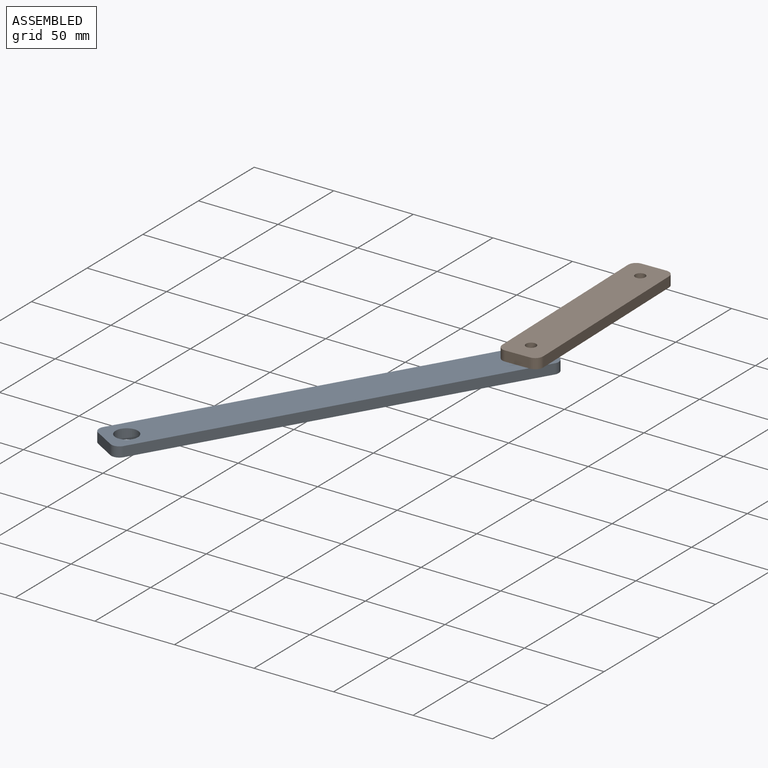
[diagram: assembled view]
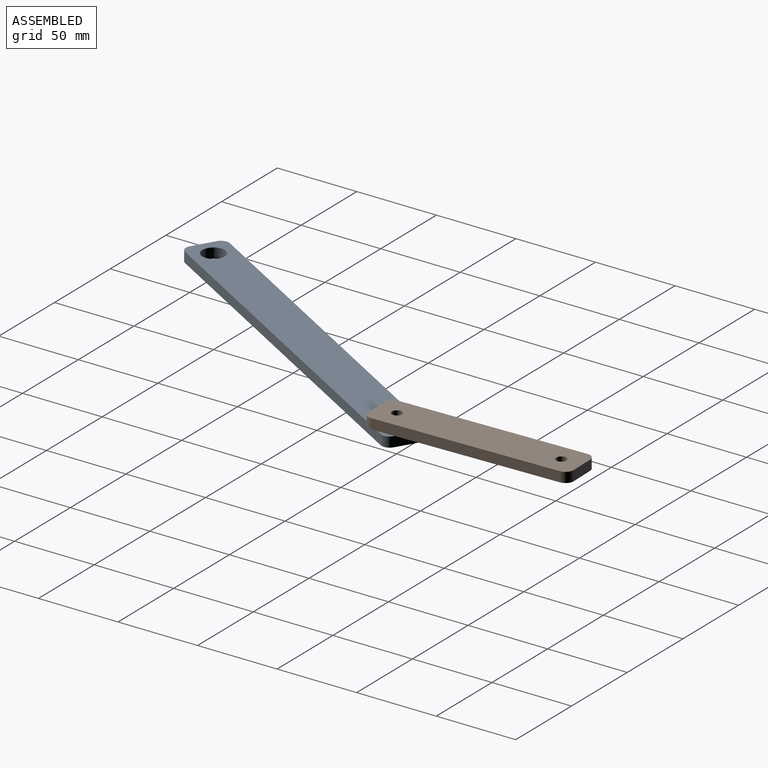
[diagram: assembled view, second angle]
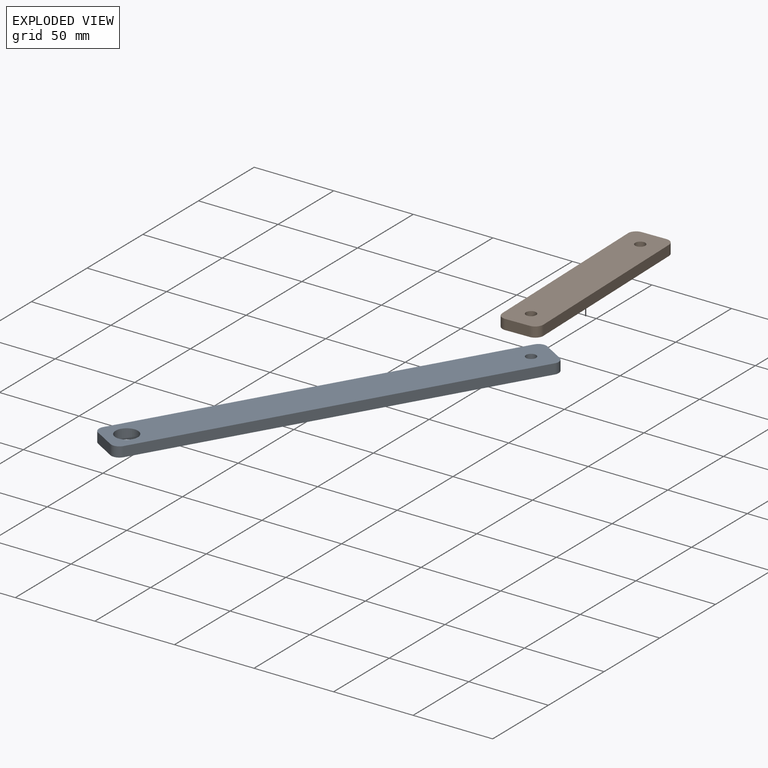
[diagram: exploded view]
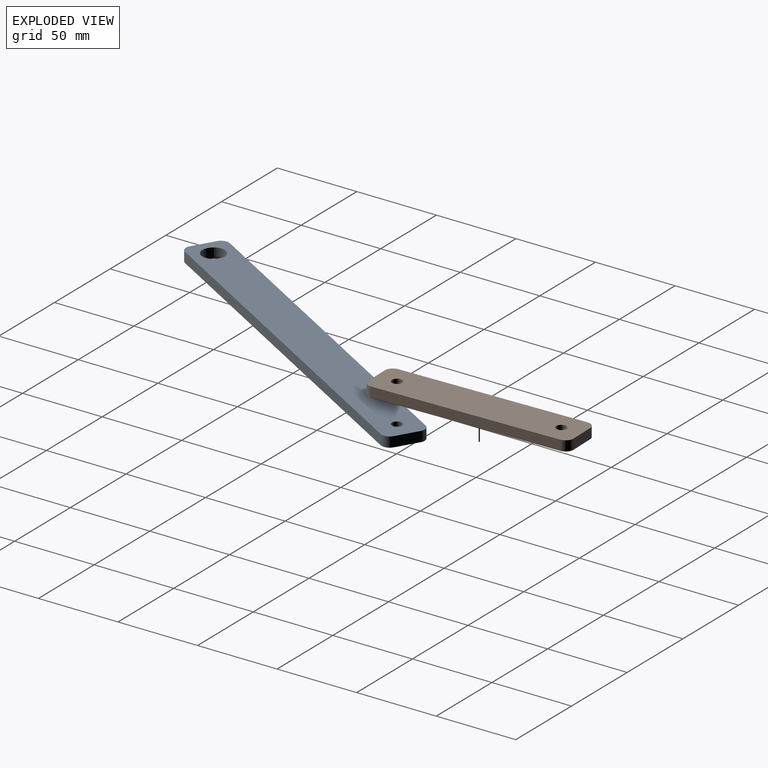
[diagram: exploded view, second angle]
ASSEMBLY  parts=2 mates=2
PART A: 12 faces, bbox 254x25.4x6.4 mm
  f0: plane 15.24x6.35mm, normal (-1,0,0), area 96.8mm2, adj f1,f3,f9,f11
  f1: plane 254x25.4mm, normal (0,0,-1), area 6244.5mm2, adj f0,f2,f4,f5,f6,f7,f8,f9
  f2: plane 15.24x6.35mm, normal (1,0,0), area 96.8mm2, adj f1,f3,f8,f10
  f3: plane 254x25.4mm, normal (0,0,1), area 6244.5mm2, adj f0,f2,f4,f5,f6,f7,f8,f9
  f4: plane 243.84x6.35mm, normal (0,1,0), area 1548.4mm2, adj f1,f3,f10,f11
  f5: plane 243.84x6.35mm, normal (0,-1,0), area 1548.4mm2, adj f1,f3,f8,f9
  f6: cylinder r=3.17mm len=6.35mm, axis (0,0,1), area 126.7mm2, adj f1,f3
  f7: cylinder r=6.99mm len=13.97mm, axis (0,0,1), area 278.7mm2, adj f1,f3
  f8: cylinder r=5.08mm len=6.35mm, axis (0,0,1), area 50.7mm2, adj f1,f2,f3,f5
  f9: cylinder r=5.08mm len=6.35mm, axis (0,0,-1), area 50.7mm2, adj f0,f1,f3,f5
  f10: cylinder r=5.08mm len=6.35mm, axis (0,0,-1), area 50.7mm2, adj f1,f2,f3,f4
  f11: cylinder r=5.08mm len=6.35mm, axis (0,0,1), area 50.7mm2, adj f0,f1,f3,f4
PART B: 12 faces, bbox 127x25.4x6.4 mm
  f0: plane 116.84x6.35mm, normal (0,1,0), area 741.9mm2, adj f1,f9,f10,f11
  f1: cylinder r=5.08mm len=6.35mm, axis (0,0,1), area 50.7mm2, adj f0,f2,f10,f11
  f2: plane 15.24x6.35mm, normal (-1,0,0), area 96.8mm2, adj f1,f3,f10,f11
  f3: cylinder r=5.08mm len=6.35mm, axis (0,0,1), area 50.7mm2, adj f2,f4,f10,f11
  f4: plane 116.84x6.35mm, normal (0,-1,0), area 741.9mm2, adj f3,f5,f10,f11
  f5: cylinder r=5.08mm len=6.35mm, axis (0,0,1), area 50.7mm2, adj f4,f6,f10,f11
  f6: plane 15.24x6.35mm, normal (1,0,0), area 96.8mm2, adj f5,f9,f10,f11
  f7: cylinder r=3.17mm len=6.35mm, axis (0,0,1), area 126.7mm2, adj f10,f11
  f8: cylinder r=3.17mm len=6.35mm, axis (0,0,1), area 126.7mm2, adj f10,f11
  f9: cylinder r=5.08mm len=6.35mm, axis (0,0,1), area 50.7mm2, adj f0,f6,f10,f11
  f10: plane 127x25.4mm, normal (0,0,-1), area 3140.3mm2, adj f0,f1,f2,f3,f4,f5,f6,f7
  f11: plane 127x25.4mm, normal (0,0,1), area 3140.3mm2, adj f0,f1,f2,f3,f4,f5,f6,f7
PLACE A rot(axis=(0,0,1),59.4deg) t=(4.47,-17.4,-6.35)mm
PLACE B rot(axis=(0,0,1),91.4deg) t=(129.33,184.4,6.35)mm
MATE revolute A.f6 <-> B.f7  axis (0,0,1) through (116.32,196.79,0)mm
MATE parallel A.f1 <-> B.f11  axis (0,0,-1) through (59.29,100.31,-6.35)mm
